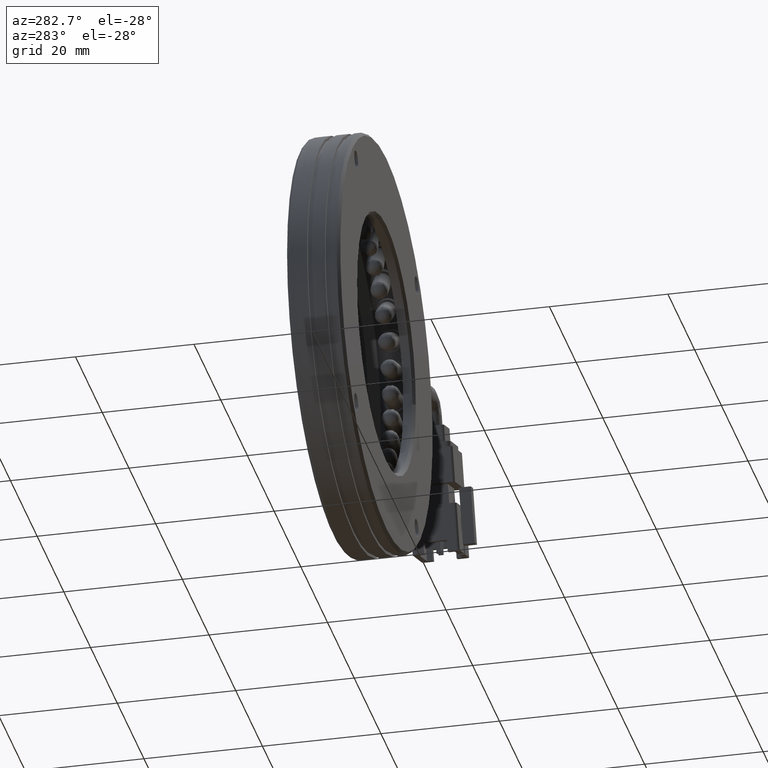
[diagram: clean part render]
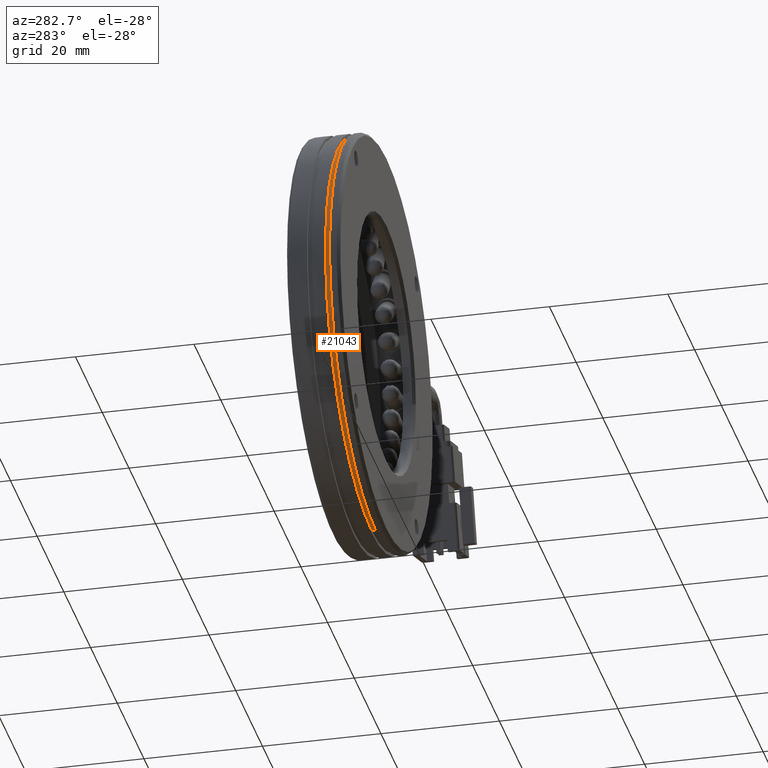
[diagram: same view with one face highlighted and labeled with its STEP entity id]
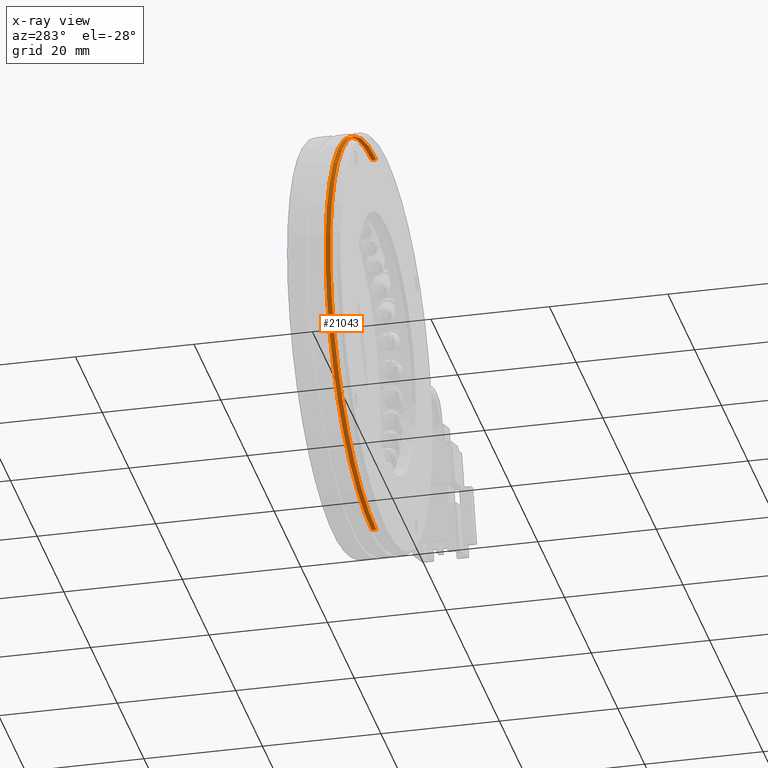
[diagram: x-ray of the same camera — body ghosted, the highlighted face saturated]
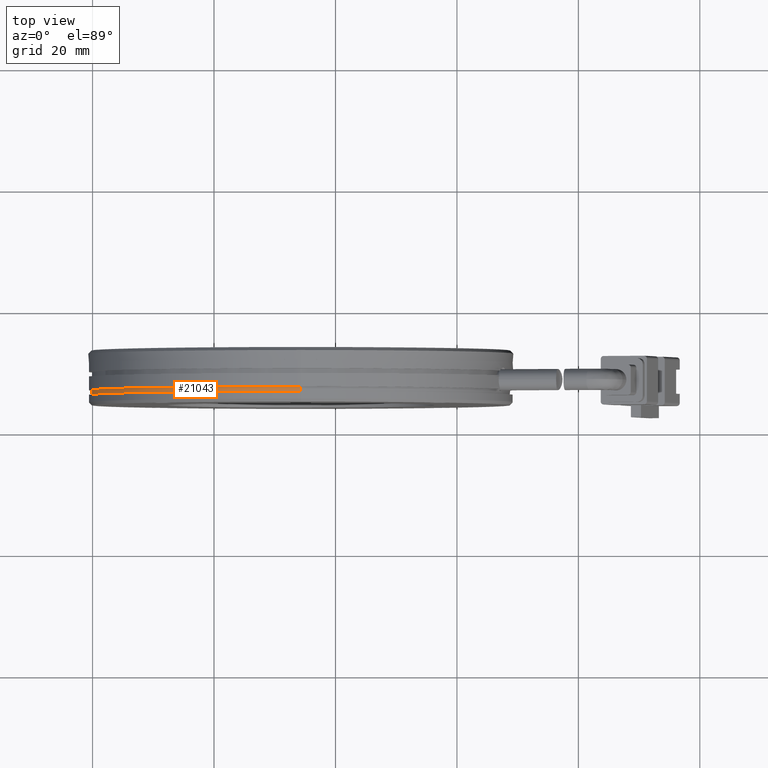
[diagram: same view with one face highlighted and labeled with its STEP entity id]
A machine part, auxiliary view. The second image highlights one B-rep face of the part: STEP entity #21043.
The next image is the same camera in x-ray: the body ghosted, the highlighted face saturated — about 0% of this face is hidden behind the body in this view.
A second angle (top view) of the same face is appended — the face is thin or edge-on in the first view.
In plain terms, the highlighted cylindrical surface (partial cylindrical patch) has radius 34.5 mm, axis along (-0, 1, -0).
Its self-contained STEP definition (entity closure, byte-faithful):
#342 = AXIS2_PLACEMENT_3D ( 'NONE', #17181, #38995, #20289 ) ;
#1377 = CIRCLE ( 'NONE', #4351, 34.49999999999997200 ) ;
#1796 = CARTESIAN_POINT ( 'NONE',  ( -5.709292144904565300, 11.26020291540426400, 0.0000000000000000000 ) ) ;
#2052 = EDGE_LOOP ( 'NONE', ( #11296, #14929, #2541, #37127 ) ) ;
#2541 = ORIENTED_EDGE ( 'NONE', *, *, #16486, .T. ) ;
#2982 = LINE ( 'NONE', #28018, #26690 ) ;
#4351 = AXIS2_PLACEMENT_3D ( 'NONE', #24688, #24571, #24435 ) ;
#4779 = AXIS2_PLACEMENT_3D ( 'NONE', #1796, #23578, #36111 ) ;
#6363 = VECTOR ( 'NONE', #16935, 1000.000000000000000 ) ;
#7037 = EDGE_CURVE ( 'NONE', #16410, #22075, #1377, .T. ) ;
#10939 = CARTESIAN_POINT ( 'NONE',  ( -5.709292144904565300, 6.760202915404272900, 34.49999999999997200 ) ) ;
#11296 = ORIENTED_EDGE ( 'NONE', *, *, #16631, .F. ) ;
#13837 = CARTESIAN_POINT ( 'NONE',  ( -5.709292144904565300, 11.26020291540426400, 34.49999999999997200 ) ) ;
#14929 = ORIENTED_EDGE ( 'NONE', *, *, #24942, .T. ) ;
#16410 = VERTEX_POINT ( 'NONE', #10939 ) ;
#16421 = FACE_OUTER_BOUND ( 'NONE', #2052, .T. ) ;
#16486 = EDGE_CURVE ( 'NONE', #28942, #16410, #21861, .T. ) ;
#16631 = EDGE_CURVE ( 'NONE', #22397, #22075, #2982, .T. ) ;
#16935 = DIRECTION ( 'NONE',  ( -0.0000000000000000000, 1.000000000000000000, -0.0000000000000000000 ) ) ;
#17181 = CARTESIAN_POINT ( 'NONE',  ( -5.709292144904565300, 5.960202915404264200, 0.0000000000000000000 ) ) ;
#19790 = CYLINDRICAL_SURFACE ( 'NONE', #4779, 34.49999999999997200 ) ;
#20289 = DIRECTION ( 'NONE',  ( 0.0000000000000000000, 0.0000000000000000000, 1.000000000000000000 ) ) ;
#21043 = ADVANCED_FACE ( 'NONE', ( #16421 ), #19790, .T. ) ;
#21861 = LINE ( 'NONE', #13837, #6363 ) ;
#22075 = VERTEX_POINT ( 'NONE', #25372 ) ;
#22397 = VERTEX_POINT ( 'NONE', #30426 ) ;
#23578 = DIRECTION ( 'NONE',  ( -0.0000000000000000000, 1.000000000000000000, -0.0000000000000000000 ) ) ;
#24435 = DIRECTION ( 'NONE',  ( 0.0000000000000000000, 0.0000000000000000000, 1.000000000000000000 ) ) ;
#24571 = DIRECTION ( 'NONE',  ( 0.0000000000000000000, -1.000000000000000000, 0.0000000000000000000 ) ) ;
#24688 = CARTESIAN_POINT ( 'NONE',  ( -5.709292144904565300, 6.760202915404272900, 0.0000000000000000000 ) ) ;
#24888 = DIRECTION ( 'NONE',  ( -0.0000000000000000000, 1.000000000000000000, -0.0000000000000000000 ) ) ;
#24942 = EDGE_CURVE ( 'NONE', #22397, #28942, #32307, .T. ) ;
#25372 = CARTESIAN_POINT ( 'NONE',  ( -5.709292144904560800, 6.760202915404272900, -34.49999999999997200 ) ) ;
#26690 = VECTOR ( 'NONE', #24888, 1000.000000000000000 ) ;
#28018 = CARTESIAN_POINT ( 'NONE',  ( -5.709292144904560800, 11.26020291540426400, -34.49999999999997200 ) ) ;
#28942 = VERTEX_POINT ( 'NONE', #36200 ) ;
#30426 = CARTESIAN_POINT ( 'NONE',  ( -5.709292144904560800, 5.960202915404264200, -34.49999999999997200 ) ) ;
#32307 = CIRCLE ( 'NONE', #342, 34.49999999999997200 ) ;
#36111 = DIRECTION ( 'NONE',  ( 0.0000000000000000000, 0.0000000000000000000, 1.000000000000000000 ) ) ;
#36200 = CARTESIAN_POINT ( 'NONE',  ( -5.709292144904565300, 5.960202915404264200, 34.49999999999997200 ) ) ;
#37127 = ORIENTED_EDGE ( 'NONE', *, *, #7037, .T. ) ;
#38995 = DIRECTION ( 'NONE',  ( -0.0000000000000000000, 1.000000000000000000, -0.0000000000000000000 ) ) ;